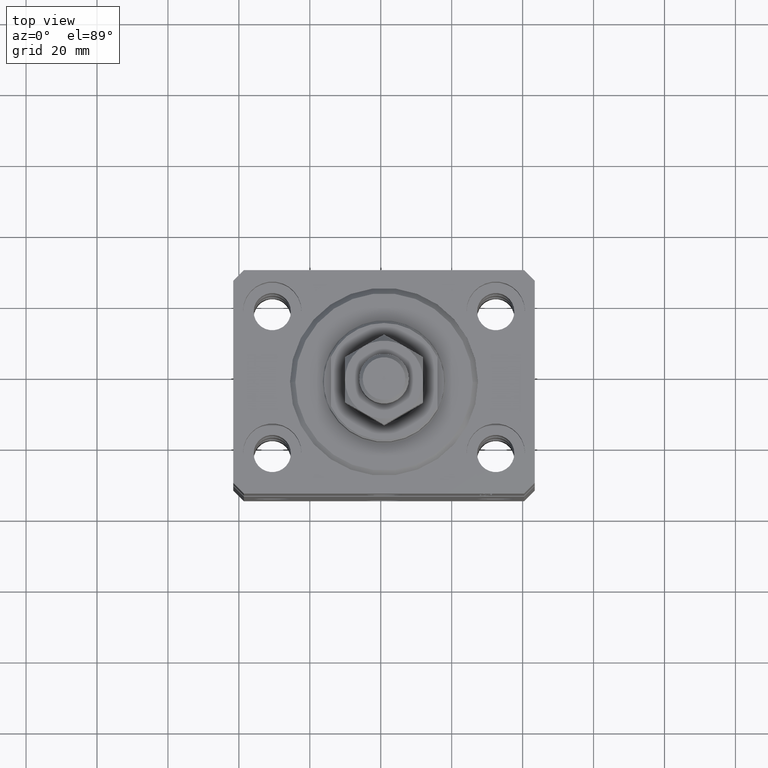
[diagram: clean part render]
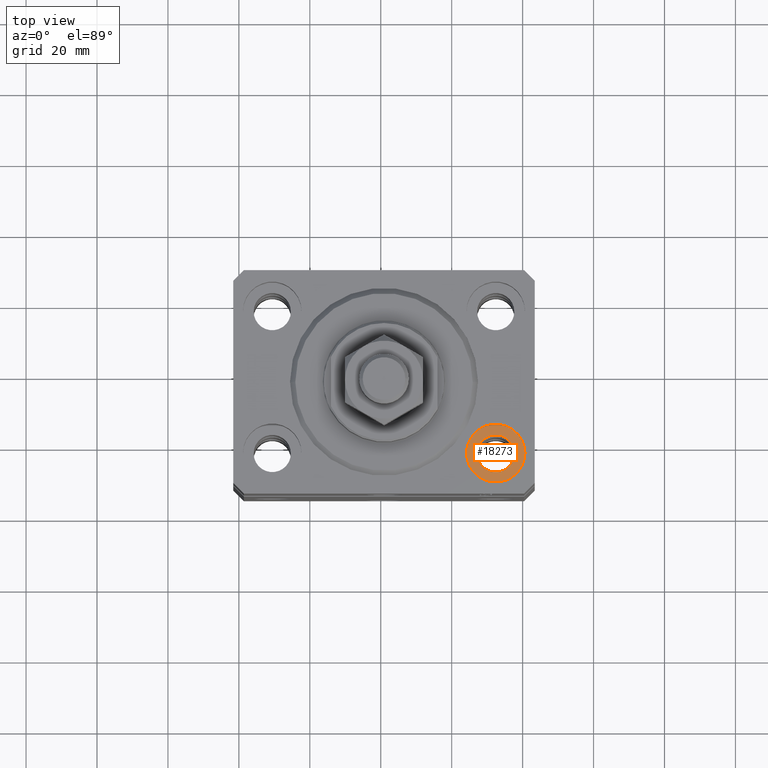
[diagram: same view with one face highlighted and labeled with its STEP entity id]
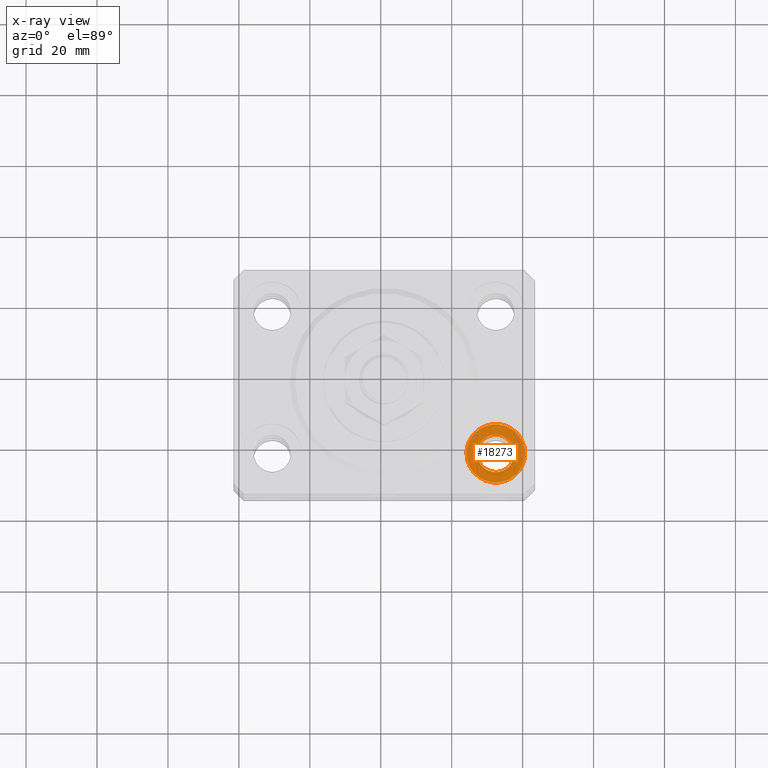
[diagram: x-ray of the same camera — body ghosted, the highlighted face saturated]
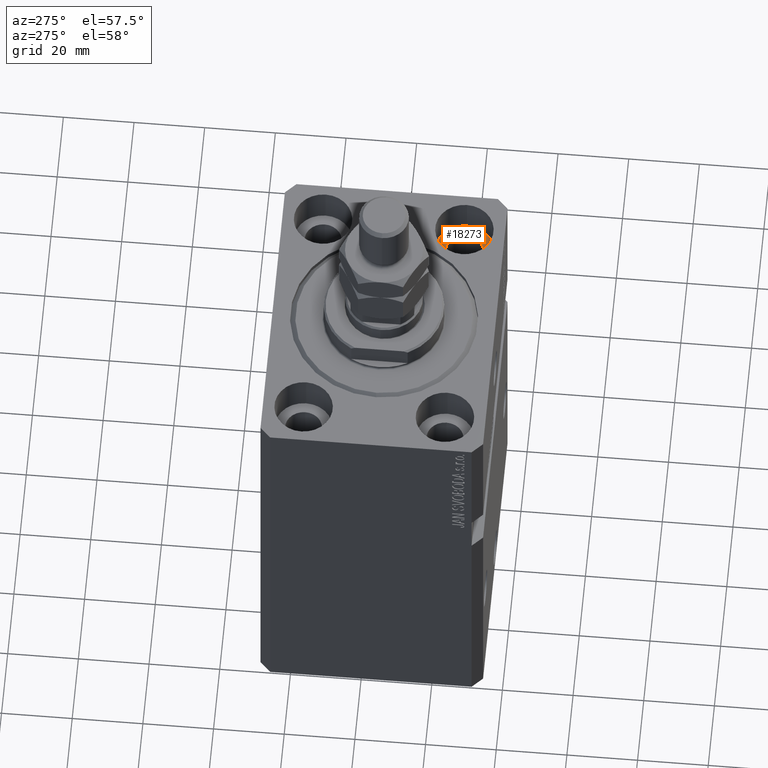
[diagram: same view with one face highlighted and labeled with its STEP entity id]
A machine part, top view. The second image highlights one B-rep face of the part: STEP entity #18273.
The next image is the same camera in x-ray: the body ghosted, the highlighted face saturated — about 0% of this face is hidden behind the body in this view.
A second angle (auxiliary view) of the same face is appended — the face is thin or edge-on in the first view.
In plain terms, the highlighted planar face has unit normal (0, 0, 1).
Its self-contained STEP definition (entity closure, byte-faithful):
#2634 = ORIENTED_EDGE ( 'NONE', *, *, #33501, .T. ) ;
#3012 = ORIENTED_EDGE ( 'NONE', *, *, #9541, .T. ) ;
#6060 = VERTEX_POINT ( 'NONE', #47011 ) ;
#7138 = DIRECTION ( 'NONE',  ( 1.000000000000000000, 0.000000000000000000, 0.000000000000000000 ) ) ;
#7299 = CIRCLE ( 'NONE', #22505, 5.249999999999997335 ) ;
#8028 = AXIS2_PLACEMENT_3D ( 'NONE', #15956, #34226, #41598 ) ;
#9541 = EDGE_CURVE ( 'NONE', #10075, #6060, #13998, .T. ) ;
#10075 = VERTEX_POINT ( 'NONE', #19795 ) ;
#11832 = DIRECTION ( 'NONE',  ( 1.000000000000000000, 0.000000000000000000, -0.000000000000000000 ) ) ;
#13998 = CIRCLE ( 'NONE', #45847, 8.249999999999992895 ) ;
#14596 = CARTESIAN_POINT ( 'NONE',  ( 26.25000000000000355, -20.00000000000000000, -11.00000000000000000 ) ) ;
#14995 = ORIENTED_EDGE ( 'NONE', *, *, #39772, .F. ) ;
#15381 = FACE_OUTER_BOUND ( 'NONE', #33386, .T. ) ;
#15570 = VERTEX_POINT ( 'NONE', #31637 ) ;
#15956 = CARTESIAN_POINT ( 'NONE',  ( 31.50000000000000000, -20.00000000000000000, -11.00000000000000000 ) ) ;
#16218 = ORIENTED_EDGE ( 'NONE', *, *, #34680, .F. ) ;
#17081 = CARTESIAN_POINT ( 'NONE',  ( 31.50000000000000000, -20.00000000000000000, -11.00000000000000000 ) ) ;
#18271 = DIRECTION ( 'NONE',  ( 0.000000000000000000, 0.000000000000000000, 1.000000000000000000 ) ) ;
#18273 = ADVANCED_FACE ( 'NONE', ( #33905, #15381 ), #35006, .T. ) ;
#19795 = CARTESIAN_POINT ( 'NONE',  ( 23.25000000000000355, -20.00000000000000000, -11.00000000000000000 ) ) ;
#20161 = CIRCLE ( 'NONE', #8028, 8.249999999999992895 ) ;
#20194 = AXIS2_PLACEMENT_3D ( 'NONE', #17081, #24199, #39152 ) ;
#21221 = EDGE_LOOP ( 'NONE', ( #16218, #14995 ) ) ;
#21303 = AXIS2_PLACEMENT_3D ( 'NONE', #44353, #29872, #11832 ) ;
#22505 = AXIS2_PLACEMENT_3D ( 'NONE', #42127, #39665, #7138 ) ;
#24199 = DIRECTION ( 'NONE',  ( 0.000000000000000000, 0.000000000000000000, 1.000000000000000000 ) ) ;
#24928 = DIRECTION ( 'NONE',  ( 1.000000000000000000, 0.000000000000000000, 0.000000000000000000 ) ) ;
#29872 = DIRECTION ( 'NONE',  ( 0.000000000000000000, 0.000000000000000000, 1.000000000000000000 ) ) ;
#30061 = CIRCLE ( 'NONE', #20194, 5.249999999999997335 ) ;
#31281 = VERTEX_POINT ( 'NONE', #14596 ) ;
#31637 = CARTESIAN_POINT ( 'NONE',  ( 36.75000000000000000, -20.00000000000000000, -11.00000000000000000 ) ) ;
#33386 = EDGE_LOOP ( 'NONE', ( #2634, #3012 ) ) ;
#33501 = EDGE_CURVE ( 'NONE', #6060, #10075, #20161, .T. ) ;
#33905 = FACE_BOUND ( 'NONE', #21221, .T. ) ;
#34226 = DIRECTION ( 'NONE',  ( 0.000000000000000000, 0.000000000000000000, 1.000000000000000000 ) ) ;
#34680 = EDGE_CURVE ( 'NONE', #15570, #31281, #30061, .T. ) ;
#35006 = PLANE ( 'NONE',  #21303 ) ;
#39152 = DIRECTION ( 'NONE',  ( 1.000000000000000000, 0.000000000000000000, 0.000000000000000000 ) ) ;
#39645 = CARTESIAN_POINT ( 'NONE',  ( 31.50000000000000000, -20.00000000000000000, -11.00000000000000000 ) ) ;
#39665 = DIRECTION ( 'NONE',  ( 0.000000000000000000, 0.000000000000000000, 1.000000000000000000 ) ) ;
#39772 = EDGE_CURVE ( 'NONE', #31281, #15570, #7299, .T. ) ;
#41598 = DIRECTION ( 'NONE',  ( 1.000000000000000000, 0.000000000000000000, 0.000000000000000000 ) ) ;
#42127 = CARTESIAN_POINT ( 'NONE',  ( 31.50000000000000000, -20.00000000000000000, -11.00000000000000000 ) ) ;
#44353 = CARTESIAN_POINT ( 'NONE',  ( 31.50000000000000000, -20.00000000000000000, -11.00000000000000000 ) ) ;
#45847 = AXIS2_PLACEMENT_3D ( 'NONE', #39645, #18271, #24928 ) ;
#47011 = CARTESIAN_POINT ( 'NONE',  ( 39.74999999999999289, -20.00000000000000000, -11.00000000000000000 ) ) ;